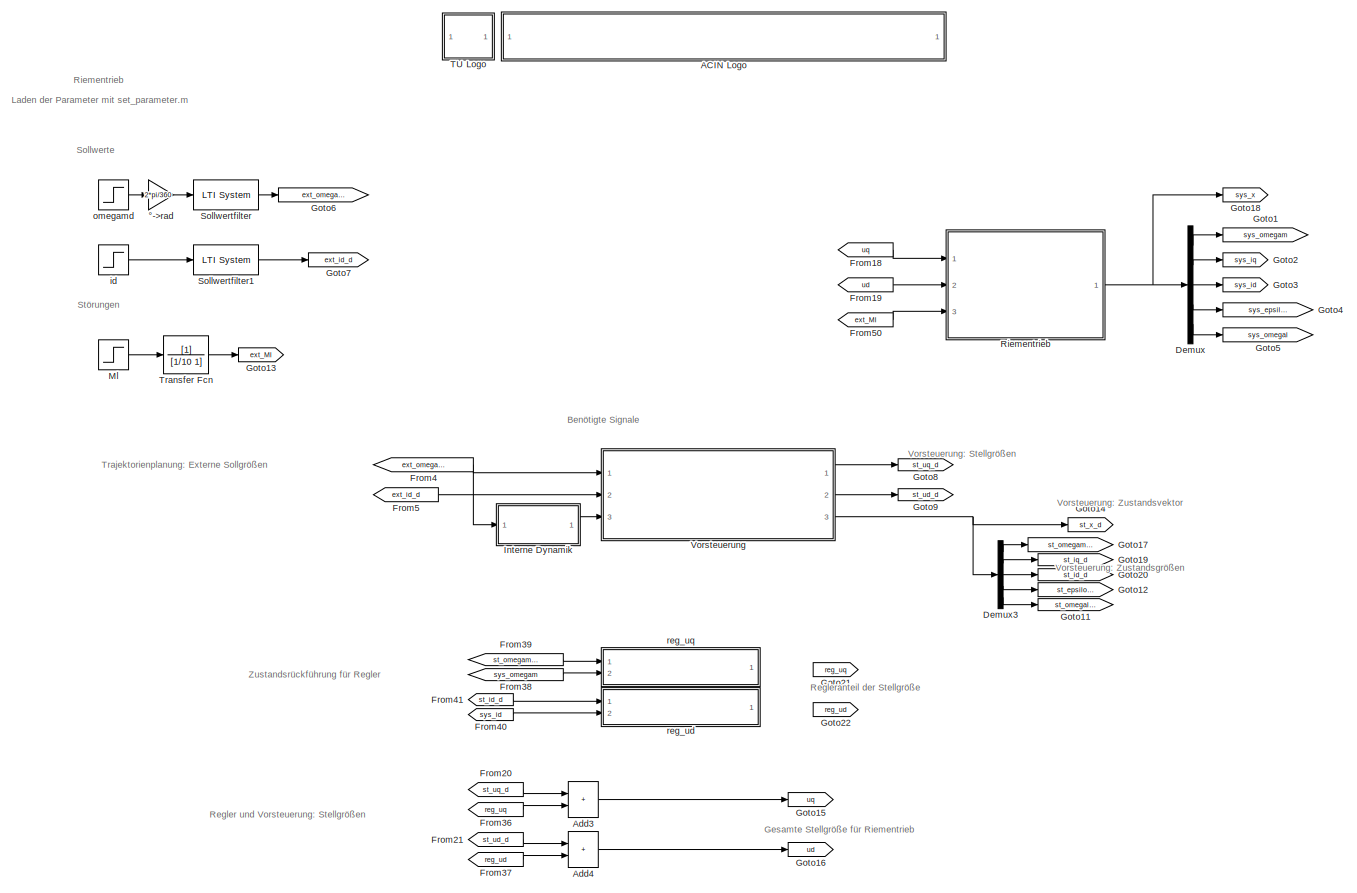
[diagram: root canvas - part 1/2, most of the canvas]
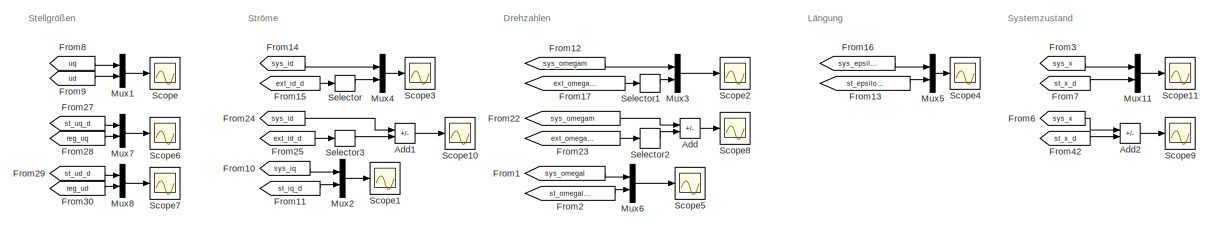
[diagram: root canvas - part 2/2, full width, bottom band]
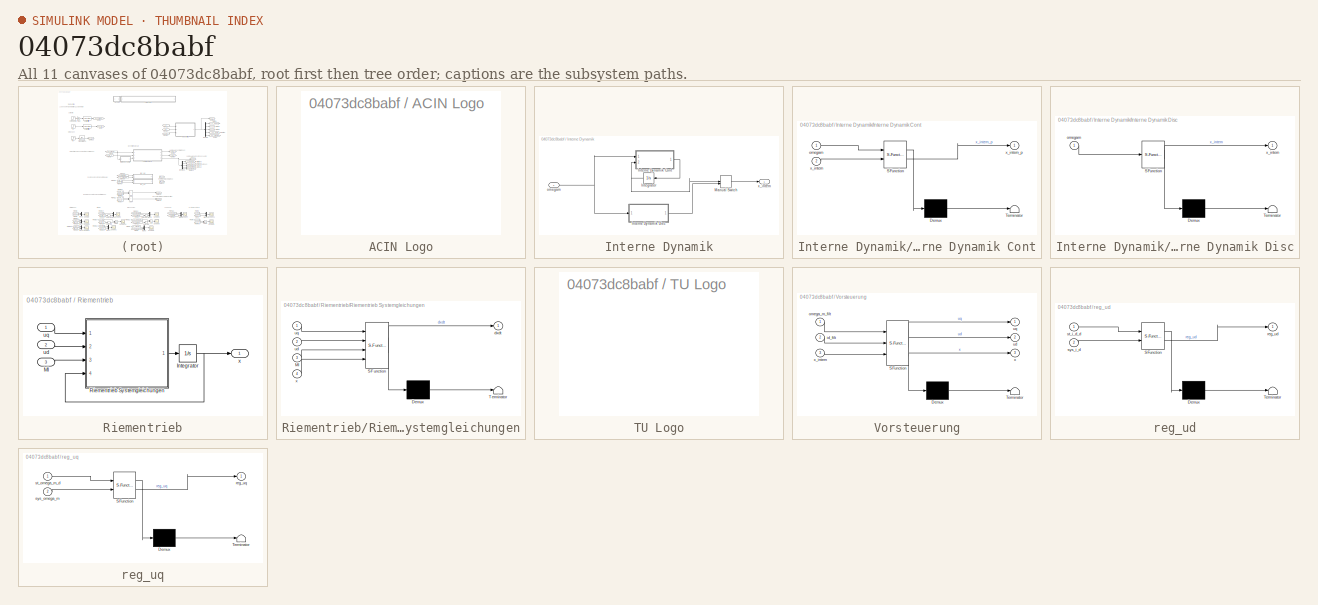
[diagram: thumbnail index - all 11 canvases of the model, root first then tree order]
MODEL slx_04073dc8babf
KIND model
CONFIG AbsTol = 1e-7
CONFIG EnableMultiTasking = on
CONFIG FixedStep = auto
CONFIG MaxStep = 1e-3
CONFIG MinStep = auto
CONFIG RelTol = 1e-7
CONFIG SampleTimeConstraint = Unconstrained
CONFIG SolverName = ode45
CONFIG StartTime = 0.0
CONFIG StopTime = 15
BLOCK [SubSystem] ACIN Logo
  Ports = []
  RequestExecContextInheritance = off
  UserDataPersistent = on
BLOCK [Sum] Add
  IconShape = rectangular
  Inputs = +-
  Ports = [2, 1]
BLOCK [Sum] Add1
  IconShape = rectangular
  Inputs = +-
  Ports = [2, 1]
BLOCK [Sum] Add2
  IconShape = rectangular
  Inputs = +-
  Ports = [2, 1]
BLOCK [Sum] Add3
  IconShape = rectangular
  Ports = [2, 1]
BLOCK [Sum] Add4
  IconShape = rectangular
  Ports = [2, 1]
BLOCK [Demux] Demux
  Outputs = 5
  Ports = [1, 5]
BLOCK [Demux] Demux3
  Outputs = 5
  Ports = [1, 5]
BLOCK [From] From1
  GotoTag = sys_omegal
  TagVisibility = global
BLOCK [From] From10
  GotoTag = sys_iq
  TagVisibility = global
BLOCK [From] From11
  GotoTag = st_iq_d
  TagVisibility = global
BLOCK [From] From12
  GotoTag = sys_omegam
  TagVisibility = global
BLOCK [From] From13
  GotoTag = st_epsilon_d
  TagVisibility = global
BLOCK [From] From14
  GotoTag = sys_id
  TagVisibility = global
BLOCK [From] From15
  GotoTag = ext_id_d
  TagVisibility = global
BLOCK [From] From16
  GotoTag = sys_epsilon
  TagVisibility = global
BLOCK [From] From17
  GotoTag = ext_omegam_d
  TagVisibility = global
BLOCK [From] From18
  GotoTag = uq
  TagVisibility = global
BLOCK [From] From19
  GotoTag = ud
  TagVisibility = global
BLOCK [From] From2
  GotoTag = st_omegal_d
  TagVisibility = global
BLOCK [From] From20
  GotoTag = st_uq_d
  TagVisibility = global
BLOCK [From] From21
  GotoTag = st_ud_d
  TagVisibility = global
BLOCK [From] From22
  GotoTag = sys_omegam
  TagVisibility = global
BLOCK [From] From23
  GotoTag = ext_omegam_d
  TagVisibility = global
BLOCK [From] From24
  GotoTag = sys_id
  TagVisibility = global
BLOCK [From] From25
  GotoTag = ext_id_d
  TagVisibility = global
BLOCK [From] From27
  GotoTag = st_uq_d
  TagVisibility = global
BLOCK [From] From28
  GotoTag = reg_uq
  TagVisibility = global
BLOCK [From] From29
  GotoTag = st_ud_d
  TagVisibility = global
BLOCK [From] From3
  GotoTag = sys_x
  TagVisibility = global
BLOCK [From] From30
  GotoTag = reg_ud
  TagVisibility = global
BLOCK [From] From36
  GotoTag = reg_uq
  TagVisibility = global
BLOCK [From] From37
  GotoTag = reg_ud
  TagVisibility = global
BLOCK [From] From38
  GotoTag = sys_omegam
  TagVisibility = global
BLOCK [From] From39
  GotoTag = st_omegam_d
  TagVisibility = global
BLOCK [From] From4
  GotoTag = ext_omegam_d
  TagVisibility = global
BLOCK [From] From40
  GotoTag = sys_id
  TagVisibility = global
BLOCK [From] From41
  GotoTag = st_id_d
  TagVisibility = global
BLOCK [From] From42
  GotoTag = st_x_d
  TagVisibility = global
BLOCK [From] From5
  GotoTag = ext_id_d
  TagVisibility = global
BLOCK [From] From50
  GotoTag = ext_Ml
  TagVisibility = global
BLOCK [From] From6
  GotoTag = sys_x
  TagVisibility = global
BLOCK [From] From7
  GotoTag = st_x_d
  TagVisibility = global
BLOCK [From] From8
  GotoTag = uq
  TagVisibility = global
BLOCK [From] From9
  GotoTag = ud
  TagVisibility = global
BLOCK [Goto] Goto1
  GotoTag = sys_omegam
  TagVisibility = global
BLOCK [Goto] Goto11
  GotoTag = st_omegal_d
  TagVisibility = global
BLOCK [Goto] Goto12
  GotoTag = st_epsilon_d
  TagVisibility = global
BLOCK [Goto] Goto13
  GotoTag = ext_Ml
  TagVisibility = global
BLOCK [Goto] Goto14
  GotoTag = st_x_d
  TagVisibility = global
BLOCK [Goto] Goto15
  GotoTag = uq
  TagVisibility = global
BLOCK [Goto] Goto16
  GotoTag = ud
  TagVisibility = global
BLOCK [Goto] Goto17
  GotoTag = st_omegam_d
  TagVisibility = global
BLOCK [Goto] Goto18
  GotoTag = sys_x
  TagVisibility = global
BLOCK [Goto] Goto19
  GotoTag = st_iq_d
  TagVisibility = global
BLOCK [Goto] Goto2
  GotoTag = sys_iq
  TagVisibility = global
BLOCK [Goto] Goto20
  GotoTag = st_id_d
  TagVisibility = global
BLOCK [Goto] Goto21
  GotoTag = reg_uq
  TagVisibility = global
BLOCK [Goto] Goto22
  GotoTag = reg_ud
  TagVisibility = global
BLOCK [Goto] Goto3
  GotoTag = sys_id
  TagVisibility = global
BLOCK [Goto] Goto4
  GotoTag = sys_epsilon
  TagVisibility = global
BLOCK [Goto] Goto5
  GotoTag = sys_omegal
  TagVisibility = global
BLOCK [Goto] Goto6
  GotoTag = ext_omegam_d
  TagVisibility = global
BLOCK [Goto] Goto7
  GotoTag = ext_id_d
  TagVisibility = global
BLOCK [Goto] Goto8
  GotoTag = st_uq_d
  TagVisibility = global
BLOCK [Goto] Goto9
  GotoTag = st_ud_d
  TagVisibility = global
BLOCK [SubSystem] Interne Dynamik
  Ports = [1, 1]
  RequestExecContextInheritance = off
BLOCK [Integrator] Interne Dynamik/Integrator
  InitialCondition = [parSys.eta_1_0; parSys.eta_2_0]
  Ports = [1, 1]
BLOCK [SubSystem] Interne Dynamik/Interne Dynamik Cont
  ErrorFcn = Stateflow.Translate.translate
  PermitHierarchicalResolution = ExplicitOnly
  Ports = [2, 1]
  RequestExecContextInheritance = off
  SFBlockType = MATLAB Function
  TreatAsAtomicUnit = on
BLOCK [Demux] Interne Dynamik/Interne Dynamik Cont/ Demux 
  Outputs = 1
  Ports = [1, 1]
BLOCK [S-Function] Interne Dynamik/Interne Dynamik Cont/ SFunction 
  EnableBusSupport = on
  FunctionName = sf_sfun
  Parameters = parSys
  PortCounts = [2 2]
  Ports = [2, 2]
  SFcnIsStateOwnerBlock = off
  SFunctionDeploymentMode = off
  Tag = Stateflow S-Function 2
BLOCK [Terminator] Interne Dynamik/Interne Dynamik Cont/ Terminator 
BLOCK [Inport] Interne Dynamik/Interne Dynamik Cont/omegam
BLOCK [Inport] Interne Dynamik/Interne Dynamik Cont/x_intern
  Port = 2
BLOCK [Outport] Interne Dynamik/Interne Dynamik Cont/x_intern_p
BLOCK [SubSystem] Interne Dynamik/Interne Dynamik Disc
  ErrorFcn = Stateflow.Translate.translate
  PermitHierarchicalResolution = ExplicitOnly
  Ports = [1, 1]
  RequestExecContextInheritance = off
  SFBlockType = MATLAB Function
  TreatAsAtomicUnit = on
BLOCK [Demux] Interne Dynamik/Interne Dynamik Disc/ Demux 
  Outputs = 1
  Ports = [1, 1]
BLOCK [S-Function] Interne Dynamik/Interne Dynamik Disc/ SFunction 
  EnableBusSupport = on
  FunctionName = sf_sfun
  Parameters = parSys
  PortCounts = [1 2]
  Ports = [1, 2]
  SFcnIsStateOwnerBlock = off
  SFunctionDeploymentMode = off
  Tag = Stateflow S-Function 1
BLOCK [Terminator] Interne Dynamik/Interne Dynamik Disc/ Terminator 
BLOCK [Inport] Interne Dynamik/Interne Dynamik Disc/omegam
BLOCK [Outport] Interne Dynamik/Interne Dynamik Disc/x_intern
BLOCK [ManualSwitch] Interne Dynamik/Manual Switch
BLOCK [Inport] Interne Dynamik/omegam
BLOCK [Outport] Interne Dynamik/x_intern
BLOCK [Step] Ml
  After = 0.1
  SampleTime = 0
  Time = 8
BLOCK [Mux] Mux1
  DisplayOption = bar
  Inputs = 2
  Ports = [2, 1]
BLOCK [Mux] Mux11
  DisplayOption = bar
  Inputs = 2
  Ports = [2, 1]
BLOCK [Mux] Mux2
  DisplayOption = bar
  Inputs = 2
  Ports = [2, 1]
BLOCK [Mux] Mux3
  DisplayOption = bar
  Inputs = 2
  Ports = [2, 1]
BLOCK [Mux] Mux4
  DisplayOption = bar
  Inputs = 2
  Ports = [2, 1]
BLOCK [Mux] Mux5
  DisplayOption = bar
  Inputs = 2
  Ports = [2, 1]
BLOCK [Mux] Mux6
  DisplayOption = bar
  Inputs = 2
  Ports = [2, 1]
BLOCK [Mux] Mux7
  DisplayOption = bar
  Inputs = 2
  Ports = [2, 1]
BLOCK [Mux] Mux8
  DisplayOption = bar
  Inputs = 2
  Ports = [2, 1]
BLOCK [SubSystem] Riementrieb
  Ports = [3, 1]
  RequestExecContextInheritance = off
BLOCK [Integrator] Riementrieb/Integrator
  InitialCondition = parSys.x0
  Ports = [1, 1]
BLOCK [Inport] Riementrieb/Ml
  Port = 3
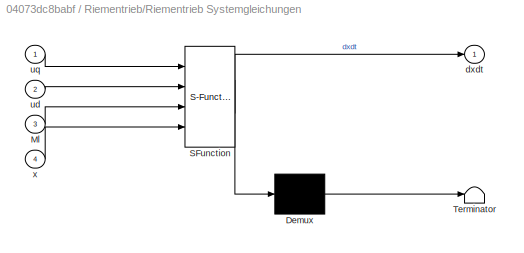
BLOCK [SubSystem] Riementrieb/Riementrieb Systemgleichungen
  ErrorFcn = Stateflow.Translate.translate
  PermitHierarchicalResolution = ExplicitOnly
  Ports = [4, 1]
  RequestExecContextInheritance = off
  SFBlockType = MATLAB Function
  TreatAsAtomicUnit = on
BLOCK [Demux] Riementrieb/Riementrieb Systemgleichungen/ Demux 
  Outputs = 1
  Ports = [1, 1]
BLOCK [S-Function] Riementrieb/Riementrieb Systemgleichungen/ SFunction 
  EnableBusSupport = on
  FunctionName = sf_sfun
  Parameters = parSys
  PortCounts = [4 2]
  Ports = [4, 2]
  SFcnIsStateOwnerBlock = off
  SFunctionDeploymentMode = off
  Tag = Stateflow S-Function 6
BLOCK [Terminator] Riementrieb/Riementrieb Systemgleichungen/ Terminator 
BLOCK [Inport] Riementrieb/Riementrieb Systemgleichungen/Ml
  Port = 3
BLOCK [Outport] Riementrieb/Riementrieb Systemgleichungen/dxdt
  VectorParamsAs1DForOutWhenUnconnected = off
BLOCK [Inport] Riementrieb/Riementrieb Systemgleichungen/ud
  Port = 2
BLOCK [Inport] Riementrieb/Riementrieb Systemgleichungen/uq
BLOCK [Inport] Riementrieb/Riementrieb Systemgleichungen/x
  Port = 4
BLOCK [Inport] Riementrieb/ud
  Port = 2
BLOCK [Inport] Riementrieb/uq
BLOCK [Outport] Riementrieb/x
  VectorParamsAs1DForOutWhenUnconnected = off
BLOCK [Scope] Scope
  Floating = off
  NumInputPorts = 1
  Ports = [1]
  ScopeSpecificationString = Simulink.scopes.TimeScopeBlockCfg('CurrentConfiguration', extmgr.ConfigurationSet(extmgr.Configuration('Core','General UI',true),extmgr.Configuration('Core','Source UI',true),extmgr.Configuration('Sources','WiredSimulink',true,'DataLoggingSaveFormat','StructureWithTime','DataLoggingDecimation','1','DataLoggingDecimateData',true),extmgr.Configuration('Visuals','Time Domain',true,'SerializedDisplays...<+1632ch>
BLOCK [Scope] Scope1
  Floating = off
  NumInputPorts = 1
  Ports = [1]
  ScopeSpecificationString = Simulink.scopes.TimeScopeBlockCfg('CurrentConfiguration', extmgr.ConfigurationSet(extmgr.Configuration('Core','General UI',true),extmgr.Configuration('Core','Source UI',true),extmgr.Configuration('Sources','WiredSimulink',true,'DataLoggingVariableName','ScopeData1','DataLoggingSaveFormat','StructureWithTime','DataLoggingDecimation','1','DataLoggingDecimateData',true),extmgr.Configuration('Visuals'...<+1831ch>
BLOCK [Scope] Scope10
  Floating = off
  NumInputPorts = 1
  Ports = [1]
  ScopeSpecificationString = Simulink.scopes.TimeScopeBlockCfg('CurrentConfiguration', extmgr.ConfigurationSet(extmgr.Configuration('Core','General UI',true),extmgr.Configuration('Core','Source UI',true),extmgr.Configuration('Sources','WiredSimulink',true,'DataLoggingVariableName','ScopeData10','DataLoggingSaveFormat','StructureWithTime','DataLoggingDecimation','1','DataLoggingDecimateData',true),extmgr.Configuration('Visuals...<+1920ch>
BLOCK [Scope] Scope11
  Floating = off
  NumInputPorts = 1
  Ports = [1]
  ScopeSpecificationString = Simulink.scopes.TimeScopeBlockCfg('CurrentConfiguration', extmgr.ConfigurationSet(extmgr.Configuration('Core','General UI',true),extmgr.Configuration('Core','Source UI',true),extmgr.Configuration('Sources','WiredSimulink',true,'DataLoggingVariableName','ScopeData11','DataLoggingSaveFormat','StructureWithTime','DataLoggingDecimation','1','DataLoggingDecimateData',true),extmgr.Configuration('Visuals...<+1810ch>
BLOCK [Scope] Scope2
  Floating = off
  NumInputPorts = 1
  Ports = [1]
  ScopeSpecificationString = Simulink.scopes.TimeScopeBlockCfg('CurrentConfiguration', extmgr.ConfigurationSet(extmgr.Configuration('Core','General UI',true),extmgr.Configuration('Core','Source UI',true),extmgr.Configuration('Sources','WiredSimulink',true,'DataLoggingVariableName','ScopeData2','DataLoggingSaveFormat','StructureWithTime','DataLoggingDecimation','1','DataLoggingDecimateData',true),extmgr.Configuration('Visuals'...<+1943ch>
BLOCK [Scope] Scope3
  Floating = off
  NumInputPorts = 1
  Ports = [1]
  ScopeSpecificationString = Simulink.scopes.TimeScopeBlockCfg('CurrentConfiguration', extmgr.ConfigurationSet(extmgr.Configuration('Core','General UI',true),extmgr.Configuration('Core','Source UI',true),extmgr.Configuration('Sources','WiredSimulink',true,'DataLoggingVariableName','ScopeData3','DataLoggingSaveFormat','StructureWithTime','DataLoggingDecimation','1','DataLoggingDecimateData',true),extmgr.Configuration('Visuals'...<+1930ch>
BLOCK [Scope] Scope4
  Floating = off
  NumInputPorts = 1
  Ports = [1]
  ScopeSpecificationString = Simulink.scopes.TimeScopeBlockCfg('CurrentConfiguration', extmgr.ConfigurationSet(extmgr.Configuration('Core','General UI',true),extmgr.Configuration('Core','Source UI',true),extmgr.Configuration('Sources','WiredSimulink',true,'DataLoggingVariableName','ScopeData4','DataLoggingSaveFormat','StructureWithTime','DataLoggingDecimation','1','DataLoggingDecimateData',true),extmgr.Configuration('Visuals'...<+1819ch>
BLOCK [Scope] Scope5
  Floating = off
  NumInputPorts = 1
  Ports = [1]
  ScopeSpecificationString = Simulink.scopes.TimeScopeBlockCfg('CurrentConfiguration', extmgr.ConfigurationSet(extmgr.Configuration('Core','General UI',true),extmgr.Configuration('Core','Source UI',true),extmgr.Configuration('Sources','WiredSimulink',true,'DataLoggingVariableName','ScopeData5','DataLoggingSaveFormat','StructureWithTime','DataLoggingDecimation','1','DataLoggingDecimateData',true),extmgr.Configuration('Visuals'...<+1827ch>
BLOCK [Scope] Scope6
  Floating = off
  NumInputPorts = 1
  Ports = [1]
  ScopeSpecificationString = Simulink.scopes.TimeScopeBlockCfg('CurrentConfiguration', extmgr.ConfigurationSet(extmgr.Configuration('Core','General UI',true),extmgr.Configuration('Core','Source UI',true),extmgr.Configuration('Sources','WiredSimulink',true,'DataLoggingVariableName','ScopeData6','DataLoggingSaveFormat','StructureWithTime','DataLoggingDecimation','1','DataLoggingDecimateData',true),extmgr.Configuration('Visuals'...<+1714ch>
BLOCK [Scope] Scope7
  Floating = off
  NumInputPorts = 1
  Ports = [1]
  ScopeSpecificationString = C++SS(StrPVP('Location','[5, 52, 1285, 993]'),StrPVP('Open','off'),MxPVP('AxesTitles',54,'struct(''axes1'',''%<SignalLabel>'')'),StrPVP('YMin','-1.66533e-016'),StrPVP('YMax','2.4'),StrPVP('SaveName','ScopeData7'),StrPVP('DataFormat','StructureWithTime'),StrPVP('LimitDataPoints','off'),StrPVP('BlockParamSampleTime','0'),StrPVP('Decimation','1'),StrPVP('BlockParamSampleInput','off'))
BLOCK [Scope] Scope8
  Floating = off
  NumInputPorts = 1
  Ports = [1]
  ScopeSpecificationString = Simulink.scopes.TimeScopeBlockCfg('CurrentConfiguration', extmgr.ConfigurationSet(extmgr.Configuration('Core','General UI',true),extmgr.Configuration('Core','Source UI',true),extmgr.Configuration('Sources','WiredSimulink',true,'DataLoggingVariableName','ScopeData8','DataLoggingSaveFormat','StructureWithTime','DataLoggingDecimation','1','DataLoggingDecimateData',true),extmgr.Configuration('Visuals'...<+1915ch>
BLOCK [Scope] Scope9
  Floating = off
  NumInputPorts = 1
  Ports = [1]
  ScopeSpecificationString = Simulink.scopes.TimeScopeBlockCfg('CurrentConfiguration', extmgr.ConfigurationSet(extmgr.Configuration('Core','General UI',true),extmgr.Configuration('Core','Source UI',true),extmgr.Configuration('Sources','WiredSimulink',true,'DataLoggingVariableName','ScopeData9','DataLoggingSaveFormat','StructureWithTime','DataLoggingDecimation','1','DataLoggingDecimateData',true),extmgr.Configuration('Visuals'...<+1725ch>
BLOCK [Selector] Selector
  IndexOptions = Index vector (dialog)
  Indices = [1]
  InputPortWidth = 2
  OutputSizes = 1
  Ports = [1, 1]
BLOCK [Selector] Selector1
  IndexOptions = Index vector (dialog)
  Indices = [1]
  InputPortWidth = 3
  OutputSizes = 1
  Ports = [1, 1]
BLOCK [Selector] Selector2
  IndexOptions = Index vector (dialog)
  Indices = [1]
  InputPortWidth = 3
  OutputSizes = 1
  Ports = [1, 1]
BLOCK [Selector] Selector3
  IndexOptions = Index vector (dialog)
  Indices = [1]
  InputPortWidth = 2
  OutputSizes = 1
  Ports = [1, 1]
BLOCK [Reference] Sollwertfilter  REF=cstblocks/LTI System
  Ports = [1, 1]
  SourceBlock = cstblocks/LTI System
  SourceProductBaseCode = CT
  SourceType = LTI Block
BLOCK [Reference] Sollwertfilter1  REF=cstblocks/LTI System
  Ports = [1, 1]
  SourceBlock = cstblocks/LTI System
  SourceProductBaseCode = CT
  SourceType = LTI Block
BLOCK [SubSystem] TU Logo
  Ports = []
  RequestExecContextInheritance = off
  UserDataPersistent = on
BLOCK [TransferFcn] Transfer Fcn
  Denominator = [1/10 1]
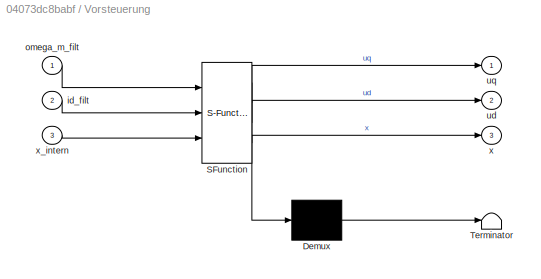
BLOCK [SubSystem] Vorsteuerung
  ErrorFcn = Stateflow.Translate.translate
  PermitHierarchicalResolution = ExplicitOnly
  Ports = [3, 3]
  RequestExecContextInheritance = off
  SFBlockType = MATLAB Function
  TreatAsAtomicUnit = on
BLOCK [Demux] Vorsteuerung/ Demux 
  Outputs = 1
  Ports = [1, 1]
BLOCK [S-Function] Vorsteuerung/ SFunction 
  EnableBusSupport = on
  FunctionName = sf_sfun
  Parameters = parSys
  PortCounts = [3 4]
  Ports = [3, 4]
  SFcnIsStateOwnerBlock = off
  SFunctionDeploymentMode = off
  Tag = Stateflow S-Function 3
BLOCK [Terminator] Vorsteuerung/ Terminator 
BLOCK [Inport] Vorsteuerung/id_filt
  Port = 2
BLOCK [Inport] Vorsteuerung/omega_m_filt
BLOCK [Outport] Vorsteuerung/ud
  Port = 2
BLOCK [Outport] Vorsteuerung/uq
BLOCK [Outport] Vorsteuerung/x
  Port = 3
BLOCK [Inport] Vorsteuerung/x_intern
  Port = 3
BLOCK [Step] id
  After = 0.1
  SampleTime = 0
BLOCK [Step] omegamd
  After = 1000/60*360
  SampleTime = 0
  Time = 4
BLOCK [SubSystem] reg_ud
  ErrorFcn = Stateflow.Translate.translate
  PermitHierarchicalResolution = ExplicitOnly
  Ports = [2, 1]
  RequestExecContextInheritance = off
  SFBlockType = MATLAB Function
  TreatAsAtomicUnit = on
BLOCK [Demux] reg_ud/ Demux 
  Outputs = 1
  Ports = [1, 1]
BLOCK [S-Function] reg_ud/ SFunction 
  EnableBusSupport = on
  FunctionName = sf_sfun
  Parameters = parSys
  PortCounts = [2 2]
  Ports = [2, 2]
  SFcnIsStateOwnerBlock = off
  SFunctionDeploymentMode = off
  Tag = Stateflow S-Function 5
BLOCK [Terminator] reg_ud/ Terminator 
BLOCK [Outport] reg_ud/reg_ud
BLOCK [Inport] reg_ud/st_i_d_d
BLOCK [Inport] reg_ud/sys_i_d
  Port = 2
BLOCK [SubSystem] reg_uq
  ErrorFcn = Stateflow.Translate.translate
  PermitHierarchicalResolution = ExplicitOnly
  Ports = [2, 1]
  RequestExecContextInheritance = off
  SFBlockType = MATLAB Function
  TreatAsAtomicUnit = on
BLOCK [Demux] reg_uq/ Demux 
  Outputs = 1
  Ports = [1, 1]
BLOCK [S-Function] reg_uq/ SFunction 
  EnableBusSupport = on
  FunctionName = sf_sfun
  Parameters = parSys
  PortCounts = [2 2]
  Ports = [2, 2]
  SFcnIsStateOwnerBlock = off
  SFunctionDeploymentMode = off
  Tag = Stateflow S-Function 4
BLOCK [Terminator] reg_uq/ Terminator 
BLOCK [Outport] reg_uq/reg_uq
BLOCK [Inport] reg_uq/st_omega_m_d
BLOCK [Inport] reg_uq/sys_omega_m
  Port = 2
BLOCK [Gain] °->rad
  Gain = 2*pi/360
ANNOTATION (root): Benötigte Signale
ANNOTATION (root): Drehzahlen
ANNOTATION (root): Gesamte Stellgröße für Riementrieb
ANNOTATION (root): Laden der Parameter mit set_parameter.m
ANNOTATION (root): Längung
ANNOTATION (root): Regler und Vorsteuerung: Stellgrößen
ANNOTATION (root): Regleranteil der Stellgröße
ANNOTATION (root): Riementrieb
ANNOTATION (root): Sollwerte
ANNOTATION (root): Stellgrößen
ANNOTATION (root): Ströme
ANNOTATION (root): Störungen
ANNOTATION (root): Systemzustand
ANNOTATION (root): Trajektorienplanung: Externe Sollgrößen
ANNOTATION (root): Vorsteuerung: Stellgrößen
ANNOTATION (root): Vorsteuerung: Zustandsgrößen
ANNOTATION (root): Vorsteuerung: Zustandsvektor
ANNOTATION (root): Zustandsrückführung für Regler
LINE Add1:1 -> Scope10:1
LINE Add2:1 -> Scope9:1
LINE Add3:1 -> Goto15:1
LINE Add4:1 -> Goto16:1
LINE Add:1 -> Scope8:1
LINE Demux3:1 -> Goto17:1
LINE Demux3:2 -> Goto19:1
LINE Demux3:3 -> Goto20:1
LINE Demux3:4 -> Goto12:1
LINE Demux3:5 -> Goto11:1
LINE Demux:1 -> Goto1:1
LINE Demux:2 -> Goto2:1
LINE Demux:3 -> Goto3:1
LINE Demux:4 -> Goto4:1
LINE Demux:5 -> Goto5:1
LINE From10:1 -> Mux2:1
LINE From11:1 -> Mux2:2
LINE From12:1 -> Mux3:1
LINE From13:1 -> Mux5:2
LINE From14:1 -> Mux4:1
LINE From15:1 -> Selector:1
LINE From16:1 -> Mux5:1
LINE From17:1 -> Selector1:1
LINE From18:1 -> Riementrieb:1
LINE From19:1 -> Riementrieb:2
LINE From1:1 -> Mux6:1
LINE From20:1 -> Add3:1
LINE From21:1 -> Add4:1
LINE From22:1 -> Add:1
LINE From23:1 -> Selector2:1
LINE From24:1 -> Add1:1
LINE From25:1 -> Selector3:1
LINE From27:1 -> Mux7:1
LINE From28:1 -> Mux7:2
LINE From29:1 -> Mux8:1
LINE From2:1 -> Mux6:2
LINE From30:1 -> Mux8:2
LINE From36:1 -> Add3:2
LINE From37:1 -> Add4:2
LINE From38:1 -> reg_uq:2
LINE From39:1 -> reg_uq:1
LINE From3:1 -> Mux11:1
LINE From40:1 -> reg_ud:2
LINE From41:1 -> reg_ud:1
LINE From42:1 -> Add2:2
NET From4:1 -> Interne Dynamik:1, Vorsteuerung:1
LINE From50:1 -> Riementrieb:3
LINE From5:1 -> Vorsteuerung:2
LINE From6:1 -> Add2:1
LINE From7:1 -> Mux11:2
LINE From8:1 -> Mux1:1
LINE From9:1 -> Mux1:2
NET Interne Dynamik/Integrator:1 -> Interne Dynamik/Interne Dynamik Cont:2, Interne Dynamik/Manual Switch:1
LINE Interne Dynamik/Interne Dynamik Cont:1 -> Interne Dynamik/Integrator:1
LINE Interne Dynamik/Interne Dynamik Disc:1 -> Interne Dynamik/Manual Switch:2
LINE Interne Dynamik/Manual Switch:1 -> Interne Dynamik/x_intern:1
NET Interne Dynamik/omegam:1 -> Interne Dynamik/Interne Dynamik Cont:1, Interne Dynamik/Interne Dynamik Disc:1
LINE Interne Dynamik:1 -> Vorsteuerung:3
LINE Ml:1 -> Transfer Fcn:1
LINE Mux11:1 -> Scope11:1
LINE Mux1:1 -> Scope:1
LINE Mux2:1 -> Scope1:1
LINE Mux3:1 -> Scope2:1
LINE Mux4:1 -> Scope3:1
LINE Mux5:1 -> Scope4:1
LINE Mux6:1 -> Scope5:1
LINE Mux7:1 -> Scope6:1
LINE Mux8:1 -> Scope7:1
NET Riementrieb/Integrator:1 -> Riementrieb/Riementrieb Systemgleichungen:4, Riementrieb/x:1
LINE Riementrieb/Ml:1 -> Riementrieb/Riementrieb Systemgleichungen:3
LINE Riementrieb/Riementrieb Systemgleichungen:1 -> Riementrieb/Integrator:1
LINE Riementrieb/ud:1 -> Riementrieb/Riementrieb Systemgleichungen:2
LINE Riementrieb/uq:1 -> Riementrieb/Riementrieb Systemgleichungen:1
NET Riementrieb:1 -> Demux:1, Goto18:1
LINE Selector1:1 -> Mux3:2
LINE Selector2:1 -> Add:2
LINE Selector3:1 -> Add1:2
LINE Selector:1 -> Mux4:2
LINE Sollwertfilter1:1 -> Goto7:1
LINE Sollwertfilter:1 -> Goto6:1
LINE Transfer Fcn:1 -> Goto13:1
LINE Vorsteuerung:1 -> Goto8:1
LINE Vorsteuerung:2 -> Goto9:1
NET Vorsteuerung:3 -> Demux3:1, Goto14:1
LINE id:1 -> Sollwertfilter1:1
LINE omegamd:1 -> °->rad:1
LINE °->rad:1 -> Sollwertfilter:1
note: NET lines group one-source signal fan-out (src -> all destinations, sorted); 1:1 wires keep LINE
CHART Interne Dynamik/Interne Dynamik Disc states=1 transitions=1
  STATE_LABEL 'eML_blk_kernel()'
  STATE_LABEL 'SCRIPT:\nfunction x_intern = fcn(omegam,parSys)\n%% Anfangswerte\npersistent x wm;\nif isempty(x)\n    x = [parSys.eta_1_0; parSys.eta_2_0];\nend\n\nif isempty(wm)\n    wm = parSys.omegam_0;\nend\n\n%% Parameter Import\nIl  = parSys.Il;\ncr1 = parSys.cr1;\ncr3 = parSys.cr3;\ndl  = parSys.dl;\nrl  = parSys.rl;\nIm  = parSys.Im;\ndm  = parSys.dm;\nrm  = parSys.rm;\nRm  = parSys.Rm;\nLm  = parSys.Lm;\np   = parSys.p;\nPhi =...<+523ch>'
CHART Interne Dynamik/Interne Dynamik Cont states=1 transitions=1
  STATE_LABEL 'eML_blk_kernel()'
  STATE_LABEL 'SCRIPT:\nfunction x_intern_p = fcn(omegam,x_intern,parSys)\n\n%% Anfangswerte im Integrator: [parSys.eta_1_0; parSys.eta_2_0]\n\n%% Variablennamen\nwm  = omegam(1);\neps = x_intern(1);\nwl  = x_intern(2);\n\n%% Parameter Import\n% Il  = parSys.Il;\n% cr1 = parSys.cr1;\n% cr3 = parSys.cr3;\n% dl  = parSys.dl;\n% rl  = parSys.rl;\n% Im  = parSys.Im;\n% dm  = parSys.dm;\n% rm  = parSys.rm;\n% Rm  = parSys.Rm;\n% Lm  = p...<+371ch>'
CHART Vorsteuerung states=1 transitions=1
  STATE_LABEL 'eML_blk_kernel()'
  STATE_LABEL 'SCRIPT:\nfunction [uq, ud, x] = fcn(omega_m_filt, id_filt, x_intern, parSys)\n%% Variablennamen\ny1d  = omega_m_filt(1);\ny1dp = omega_m_filt(2);\ny1dpp= omega_m_filt(3);\n\ny2d = id_filt(1);\ny2dp= id_filt(2);\n%% Parameter Import\nIl  = parSys.Il;\ncr1 = parSys.cr1;\ncr3 = parSys.cr3;\ndl  = parSys.dl;\nrl  = parSys.rl;\nI_m  = parSys.Im;\ndm  = parSys.dm;\nrm  = parSys.rm;\nRm  = parSys.Rm;\nLm  = parSys.Lm;\np   ...<+948ch>'
CHART reg_uq states=1 transitions=1
  STATE_LABEL 'eML_blk_kernel()'
  STATE_LABEL 'SCRIPT:\nfunction reg_uq = fcn(st_omega_m_d,sys_omega_m,parSys)\n\npersistent eI;\nif isempty(eI) \n    eI=0;\nend\n\ne = st_omega_m_d - sys_omega_m;\n\nup = parSys.kp_uq * e;\nuI = parSys.kI_uq * eI;\n\nreg_uq = up + uI;\n\neI = eI + parSys.Ta*e;\nend\n'
CHART reg_ud states=1 transitions=1
  STATE_LABEL 'eML_blk_kernel()'
  STATE_LABEL 'SCRIPT:\nfunction reg_ud = fcn(st_i_d_d,sys_i_d,parSys)\n\npersistent eI;\nif isempty(eI) \n    eI=0;\nend\n\ne = st_i_d_d - sys_i_d;\n\nup = parSys.kp_ud * e;\nuI = parSys.kI_ud * eI;\n\nreg_ud = up + uI;\n\neI = eI + parSys.Ta*e;\nend'
CHART Riementrieb/Riementrieb Systemgleichungen states=1 transitions=1
  STATE_LABEL 'eML_blk_kernel()'
  STATE_LABEL 'SCRIPT:\nfunction dxdt =fcn(uq,ud,Ml,x,parSys)\n  dxdt=zeros(5,1);\n  omegam=x(1);\n  iq=x(2);\n  id=x(3);\n  epsilon=x(4);\n  omegal=x(5);\n  t3 = epsilon * epsilon;\n  t6 = parSys.cr1 * epsilon + parSys.cr3 * t3 * epsilon;\n  t10 = parSys.p * parSys.Phi;\n  dt_omegam = 0.1e1 / parSys.Im * (0.2e1 * t6 * parSys.rm - parSys.dm * omegam + 0.3e1 / 0.2e1 * t10 * iq);\n  t14 = 0.1e1 / parSys.Lm;\n  t16 = parSys.Lm ...<+411ch>'
CHART  states=0 transitions=0
CHART  states=0 transitions=0
CHART  states=0 transitions=0
CHART  states=0 transitions=0
CHART  states=0 transitions=0
CHART  states=0 transitions=0
